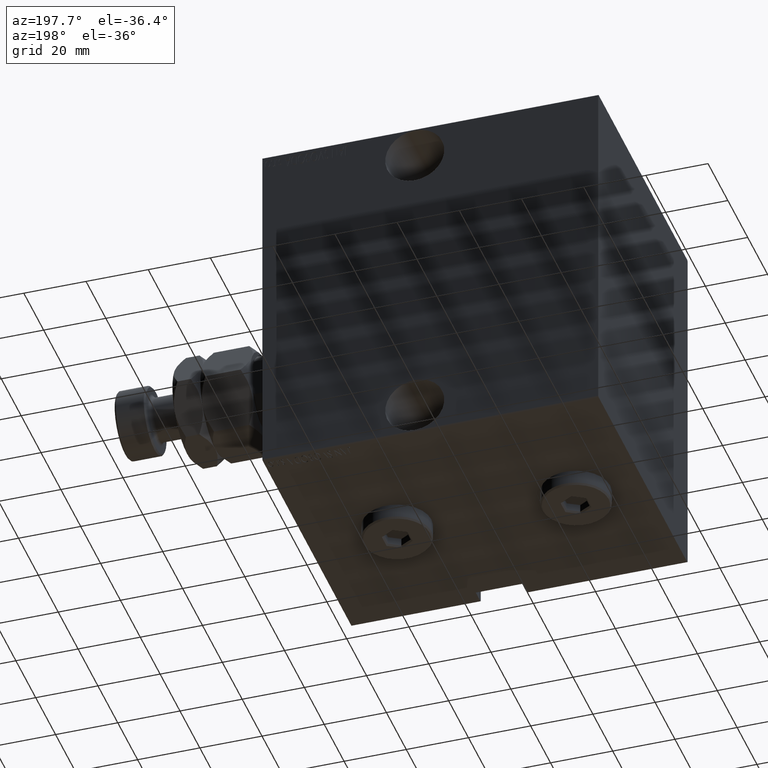
[diagram: clean part render]
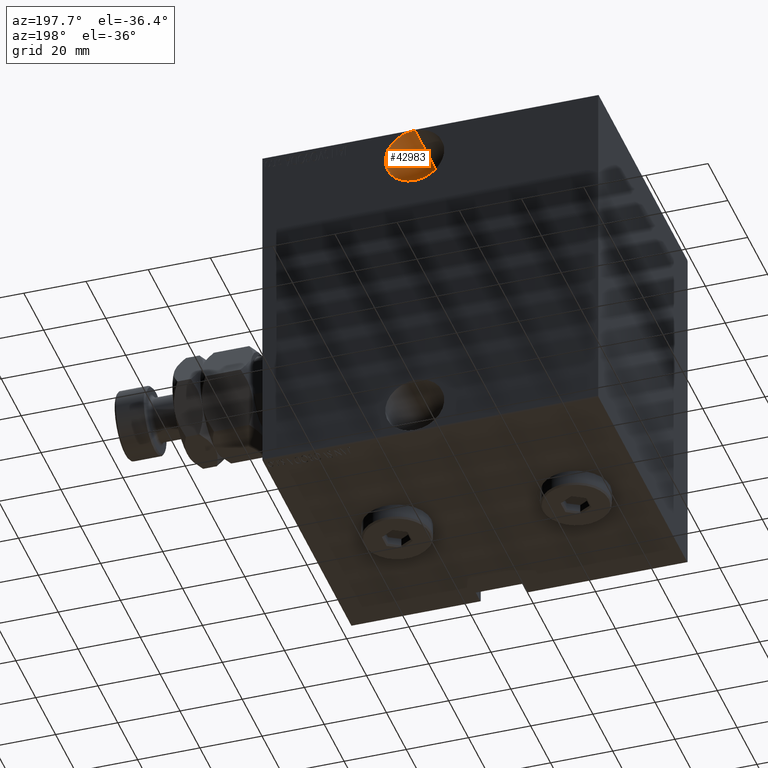
[diagram: same view with one face highlighted and labeled with its STEP entity id]
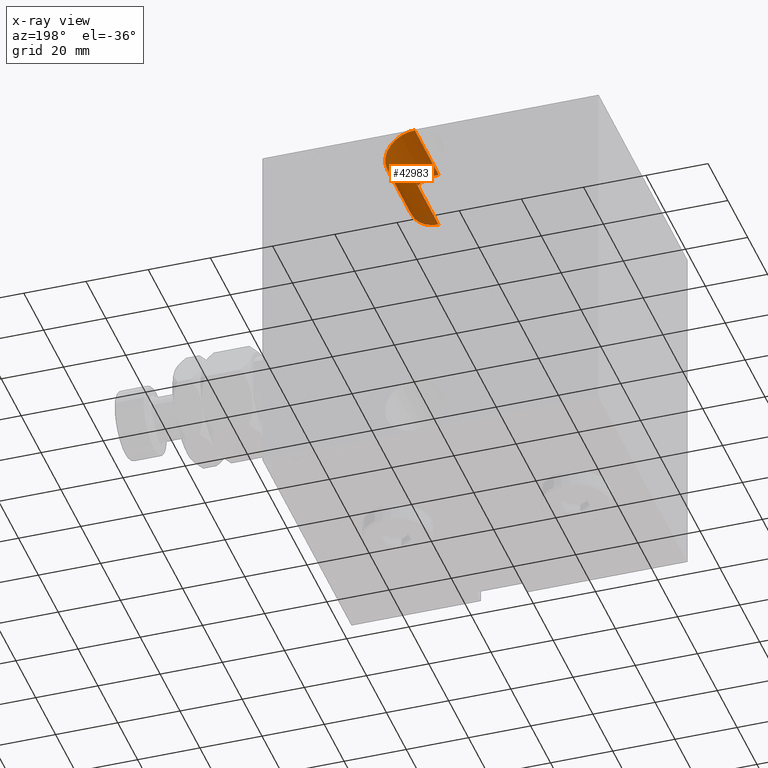
[diagram: x-ray of the same camera — body ghosted, the highlighted face saturated]
A machine part, auxiliary view. The second image highlights one B-rep face of the part: STEP entity #42983.
The next image is the same camera in x-ray: the body ghosted, the highlighted face saturated — about 12% of this face is hidden behind the body in this view.
In plain terms, the highlighted cylindrical surface (edge-blend (fillet) strip) has radius 9.5 mm, axis along (0, 1, 0).
Its self-contained STEP definition (entity closure, byte-faithful):
#1034 = VECTOR ( 'NONE', #19771, 1000.000000000000000 ) ;
#2187 = CARTESIAN_POINT ( 'NONE',  ( 49.00000000000002132, -20.99999999999998934, 47.49999999999999289 ) ) ;
#2536 = VERTEX_POINT ( 'NONE', #41662 ) ;
#2834 = CIRCLE ( 'NONE', #11013, 9.500000000000001776 ) ;
#3622 = AXIS2_PLACEMENT_3D ( 'NONE', #2187, #19567, #8907 ) ;
#4582 = CARTESIAN_POINT ( 'NONE',  ( 49.00000000000002132, -20.99999999999999289, 37.99999999999999289 ) ) ;
#5920 = DIRECTION ( 'NONE',  ( 0.000000000000000000, 0.000000000000000000, -1.000000000000000000 ) ) ;
#6865 = VERTEX_POINT ( 'NONE', #21144 ) ;
#6882 = ORIENTED_EDGE ( 'NONE', *, *, #18441, .T. ) ;
#8772 = CIRCLE ( 'NONE', #3622, 9.500000000000001776 ) ;
#8883 = ORIENTED_EDGE ( 'NONE', *, *, #26622, .F. ) ;
#8907 = DIRECTION ( 'NONE',  ( 0.000000000000000000, -3.652049423109066841E-16, -1.000000000000000000 ) ) ;
#9397 = DIRECTION ( 'NONE',  ( 0.000000000000000000, -1.000000000000000000, 1.963837897332234442E-16 ) ) ;
#9947 = ORIENTED_EDGE ( 'NONE', *, *, #45691, .T. ) ;
#11013 = AXIS2_PLACEMENT_3D ( 'NONE', #37381, #9397, #5920 ) ;
#11412 = EDGE_CURVE ( 'NONE', #12461, #40371, #36312, .T. ) ;
#12030 = DIRECTION ( 'NONE',  ( -0.000000000000000000, -1.000000000000000000, 1.963837897332234195E-16 ) ) ;
#12461 = VERTEX_POINT ( 'NONE', #4582 ) ;
#16443 = FACE_OUTER_BOUND ( 'NONE', #17420, .T. ) ;
#17420 = EDGE_LOOP ( 'NONE', ( #8883, #9947, #6882, #24739 ) ) ;
#18441 = EDGE_CURVE ( 'NONE', #6865, #40371, #2834, .T. ) ;
#19567 = DIRECTION ( 'NONE',  ( 0.000000000000000000, -1.000000000000000000, 1.963837897332234442E-16 ) ) ;
#19771 = DIRECTION ( 'NONE',  ( -0.000000000000000000, -1.000000000000000000, 1.963837897332234195E-16 ) ) ;
#21144 = CARTESIAN_POINT ( 'NONE',  ( 49.00000000000002132, -44.99999999999999289, 57.00000000000000000 ) ) ;
#22622 = VECTOR ( 'NONE', #12030, 1000.000000000000000 ) ;
#24739 = ORIENTED_EDGE ( 'NONE', *, *, #11412, .F. ) ;
#26622 = EDGE_CURVE ( 'NONE', #2536, #12461, #8772, .T. ) ;
#26850 = AXIS2_PLACEMENT_3D ( 'NONE', #30764, #34223, #29858 ) ;
#29858 = DIRECTION ( 'NONE',  ( 0.000000000000000000, -3.652049423109066841E-16, -1.000000000000000000 ) ) ;
#30764 = CARTESIAN_POINT ( 'NONE',  ( 49.00000000000002132, -20.99999999999998934, 47.49999999999999289 ) ) ;
#34223 = DIRECTION ( 'NONE',  ( -0.000000000000000000, -1.000000000000000000, 1.963837897332234195E-16 ) ) ;
#36312 = LINE ( 'NONE', #39801, #22622 ) ;
#36640 = LINE ( 'NONE', #43588, #1034 ) ;
#37381 = CARTESIAN_POINT ( 'NONE',  ( 49.00000000000002132, -44.99999999999999289, 47.50000000000000000 ) ) ;
#37466 = CYLINDRICAL_SURFACE ( 'NONE', #26850, 9.500000000000001776 ) ;
#39801 = CARTESIAN_POINT ( 'NONE',  ( 49.00000000000002132, -20.99999999999999289, 37.99999999999999289 ) ) ;
#40371 = VERTEX_POINT ( 'NONE', #44507 ) ;
#41662 = CARTESIAN_POINT ( 'NONE',  ( 49.00000000000002132, -20.99999999999998579, 56.99999999999999289 ) ) ;
#42983 = ADVANCED_FACE ( 'NONE', ( #16443 ), #37466, .F. ) ;
#43588 = CARTESIAN_POINT ( 'NONE',  ( 49.00000000000002132, -20.99999999999998579, 56.99999999999999289 ) ) ;
#44507 = CARTESIAN_POINT ( 'NONE',  ( 49.00000000000002132, -44.99999999999999289, 38.00000000000000000 ) ) ;
#45691 = EDGE_CURVE ( 'NONE', #2536, #6865, #36640, .T. ) ;